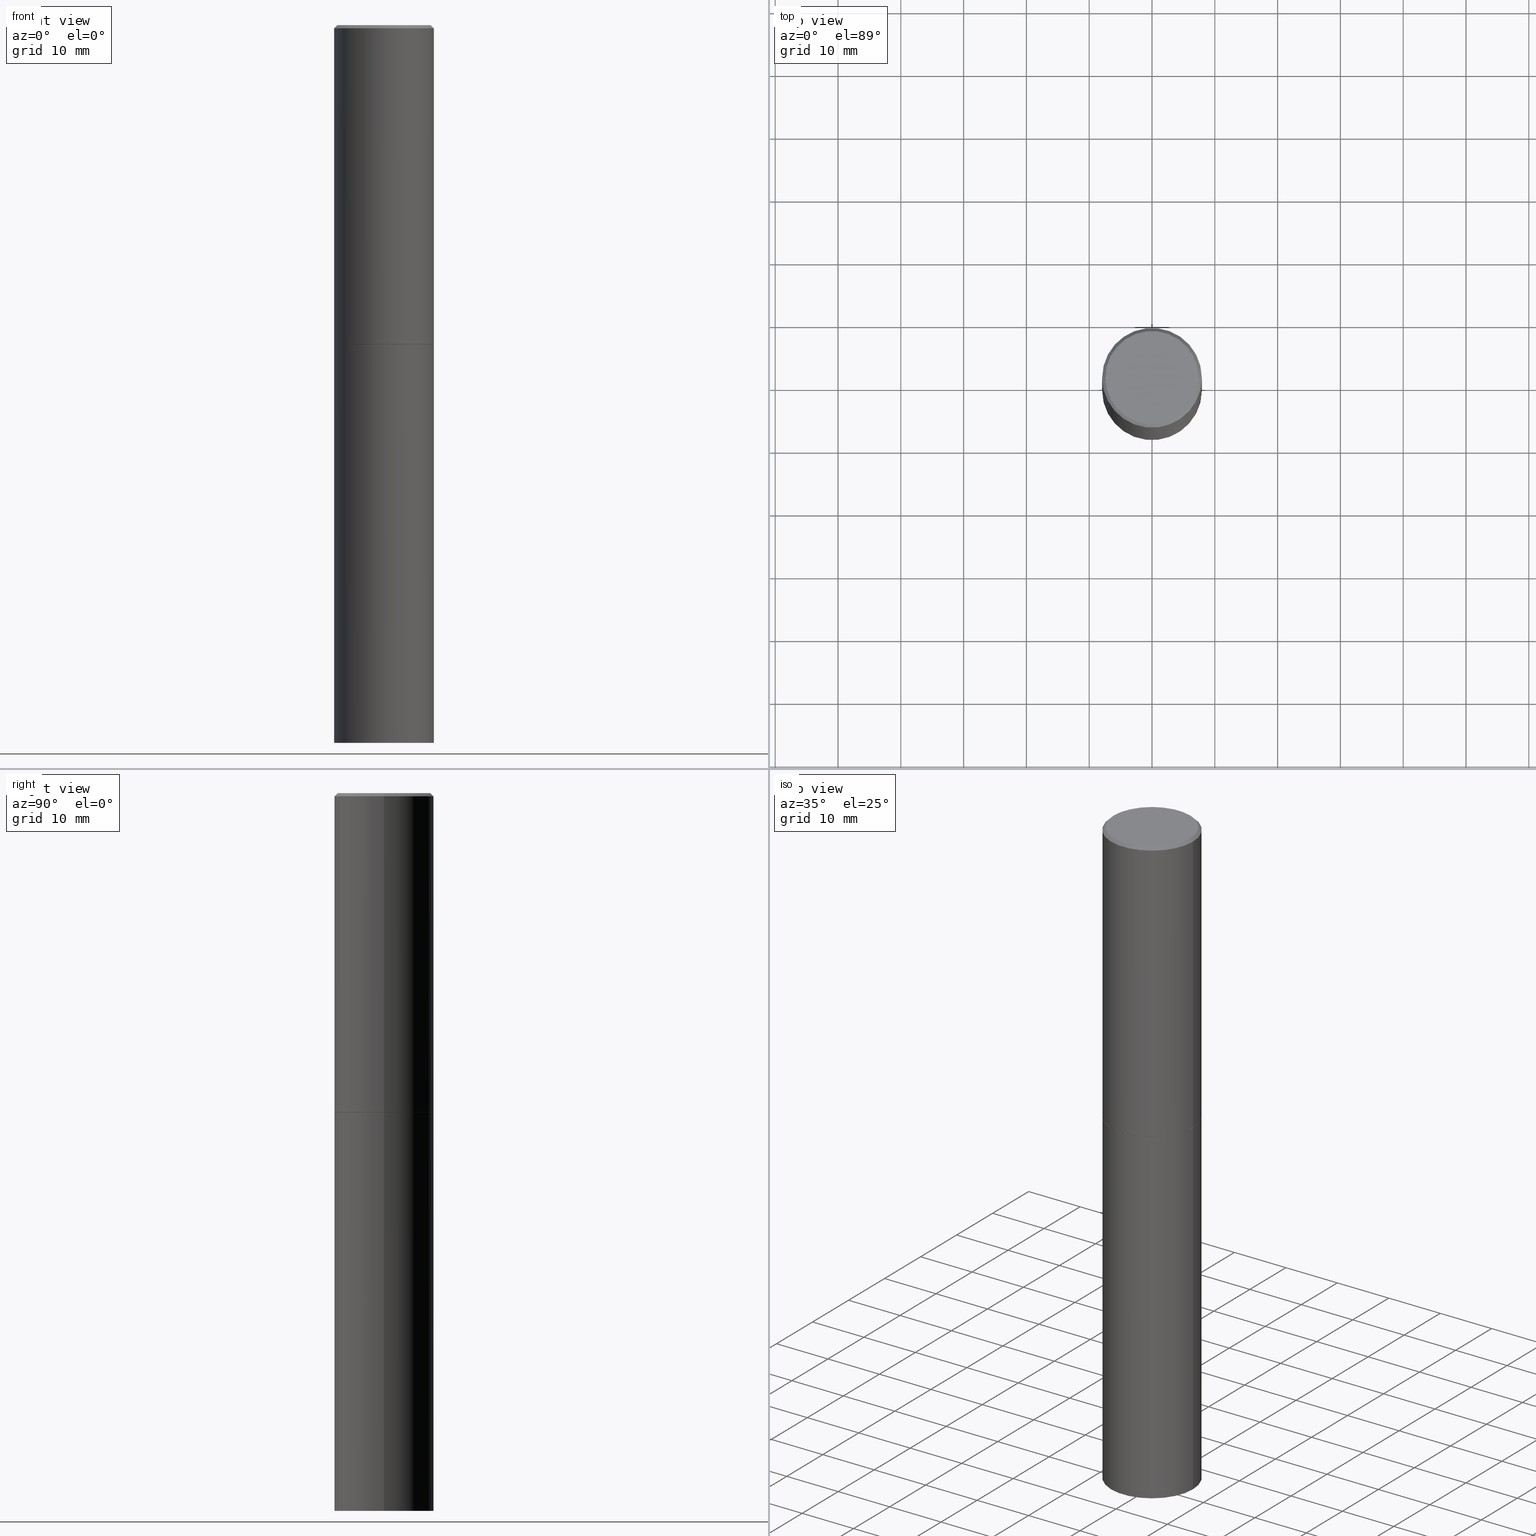
[diagram: canonical four-view strip — front | top / right | iso, engineering-drawing reading convention]
A machine part, canonical four-view strip (front | top / right | iso — engineering-drawing reading convention). The complete STEP part file that produces these views, byte-faithful:
ISO-10303-21;
HEADER;
FILE_DESCRIPTION (( 'STEP AP203' ),
    '1' );
FILE_NAME ('77401.STEP',
    '2024-05-03T15:06:01',
    ( '' ),
    ( '' ),
    'SwSTEP 2.0',
    'SolidWorks 2023',
    '' );
FILE_SCHEMA (( 'CONFIG_CONTROL_DESIGN' ));
ENDSEC;

DATA;
#1 =( NAMED_UNIT ( * ) SI_UNIT ( $, .STERADIAN. ) SOLID_ANGLE_UNIT ( ) );
#2 = AXIS2_PLACEMENT_3D ( 'NONE', #198, #112, #344 ) ;
#3 = LOCAL_TIME ( 11, 6, 1.000000000000000000, #264 ) ;
#4 = VECTOR ( 'NONE', #166, 39.37007874015748854 ) ;
#5 = ADVANCED_FACE ( 'NONE', ( #326 ), #212, .T. ) ;
#6 = LINE ( 'NONE', #38, #332 ) ;
#7 = ORIENTED_EDGE ( 'NONE', *, *, #235, .F. ) ;
#8 = CARTESIAN_POINT ( 'NONE',  ( 4.890937612370273194E-29, -6.982962677686291165E-15, -2.000000000000000000 ) ) ;
#9 = ORIENTED_EDGE ( 'NONE', *, *, #246, .T. ) ;
#10 = DIRECTION ( 'NONE',  ( 1.000000000000000000, -6.982962677686265133E-15, 0.000000000000000000 ) ) ;
#11 = AXIS2_PLACEMENT_3D ( 'NONE', #21, #211, #333 ) ;
#12 = PRODUCT_DEFINITION ( 'UNKNOWN', '', #275, #153 ) ;
#13 = DIRECTION ( 'NONE',  ( 1.000000000000000000, -6.982962677686269077E-15, 0.000000000000000000 ) ) ;
#14 = ORIENTED_EDGE ( 'NONE', *, *, #283, .F. ) ;
#15 = DIRECTION ( 'NONE',  ( -2.445468806185136597E-29, 3.491481338843145583E-15, 1.000000000000000000 ) ) ;
#16 = APPROVAL_ROLE ( '' ) ;
#17 = SECURITY_CLASSIFICATION ( '', '', #149 ) ;
#18 = COORDINATED_UNIVERSAL_TIME_OFFSET ( 5, 0, .BEHIND. ) ;
#19 = PERSON_AND_ORGANIZATION ( #106, #60 ) ;
#20 = ORIENTED_EDGE ( 'NONE', *, *, #335, .T. ) ;
#21 = CARTESIAN_POINT ( 'NONE',  ( 2.182175836777068393E-15, 0.3124999999999842903, -4.500000000000000888 ) ) ;
#22 = VERTEX_POINT ( 'NONE', #190 ) ;
#23 = APPROVAL_STATUS ( 'not_yet_approved' ) ;
#24 = EDGE_LOOP ( 'NONE', ( #9, #308, #227, #123 ) ) ;
#25 = AXIS2_PLACEMENT_3D ( 'NONE', #159, #26, #80 ) ;
#26 = DIRECTION ( 'NONE',  ( -2.445468806185136597E-29, 3.491481338843145583E-15, 1.000000000000000000 ) ) ;
#27 = ORIENTED_EDGE ( 'NONE', *, *, #295, .T. ) ;
#28 = AXIS2_PLACEMENT_3D ( 'NONE', #334, #44, #205 ) ;
#29 = DIRECTION ( 'NONE',  ( 1.000000000000000000, -6.982962677686269077E-15, 0.000000000000000000 ) ) ;
#30 = VECTOR ( 'NONE', #107, 39.37007874015748143 ) ;
#31 = DIRECTION ( 'NONE',  ( 1.000000000000000000, -6.982962677686269077E-15, 0.000000000000000000 ) ) ;
#32 = PRODUCT_RELATED_PRODUCT_CATEGORY ( 'detail', '', ( #92 ) ) ;
#33 = CARTESIAN_POINT ( 'NONE',  ( 0.3125000000000000000, -9.165138514463248723E-15, -2.000000000000000000 ) ) ;
#34 = CARTESIAN_POINT ( 'NONE',  ( 4.890937612370293302E-31, -6.982962677686318726E-17, -0.02000000000000008021 ) ) ;
#35 = ADVANCED_FACE ( 'NONE', ( #61 ), #312, .T. ) ;
#36 = EDGE_LOOP ( 'NONE', ( #14, #233, #339, #39 ) ) ;
#37 = DIRECTION ( 'NONE',  ( -2.445468806185136877E-29, 3.491481338843145188E-15, 1.000000000000000000 ) ) ;
#38 = CARTESIAN_POINT ( 'NONE',  ( -0.3114999999999999991, -4.769622055793578304E-15, -2.000000000000000000 ) ) ;
#39 = ORIENTED_EDGE ( 'NONE', *, *, #295, .F. ) ;
#40 = FACE_OUTER_BOUND ( 'NONE', #137, .T. ) ;
#41 = FACE_OUTER_BOUND ( 'NONE', #87, .T. ) ;
#42 =( GEOMETRIC_REPRESENTATION_CONTEXT ( 3 ) GLOBAL_UNCERTAINTY_ASSIGNED_CONTEXT ( ( #307 ) ) GLOBAL_UNIT_ASSIGNED_CONTEXT ( ( #182, #277, #1 ) ) REPRESENTATION_CONTEXT ( 'NONE', 'WORKASPACE' ) );
#43 = DIRECTION ( 'NONE',  ( -2.445468806185136597E-29, 3.491481338843145583E-15, 1.000000000000000000 ) ) ;
#44 = DIRECTION ( 'NONE',  ( -2.438088387897960049E-29, 3.491481338843145188E-15, 1.000000000000000000 ) ) ;
#45 = DATE_AND_TIME ( #232, #117 ) ;
#46 = FACE_OUTER_BOUND ( 'NONE', #200, .T. ) ;
#47 = PERSON_AND_ORGANIZATION ( #106, #60 ) ;
#48 = FACE_OUTER_BOUND ( 'NONE', #351, .T. ) ;
#49 = CARTESIAN_POINT ( 'NONE',  ( -0.3114999999999999991, -4.764323601445356690E-15, -2.000000000000000000 ) ) ;
#50 = DATE_AND_TIME ( #294, #328 ) ;
#51 = CC_DESIGN_PERSON_AND_ORGANIZATION_ASSIGNMENT ( #203, #132, ( #92 ) ) ;
#52 = AXIS2_PLACEMENT_3D ( 'NONE', #259, #152, #31 ) ;
#53 = APPROVAL_PERSON_ORGANIZATION ( #47, #57, #122 ) ;
#54 = ORIENTED_EDGE ( 'NONE', *, *, #158, .T. ) ;
#55 = DIRECTION ( 'NONE',  ( 1.000000000000000000, -6.982962677686269077E-15, 0.000000000000000000 ) ) ;
#56 = ORIENTED_EDGE ( 'NONE', *, *, #238, .T. ) ;
#57 = APPROVAL ( #23, 'UNSPECIFIED' ) ;
#58 = EDGE_CURVE ( 'NONE', #234, #263, #155, .T. ) ;
#59 = CYLINDRICAL_SURFACE ( 'NONE', #309, 0.3125000000000000000 ) ;
#60 = ORGANIZATION ( 'UNSPECIFIED', 'UNSPECIFIED', '' ) ;
#61 = FACE_OUTER_BOUND ( 'NONE', #143, .T. ) ;
#62 = CARTESIAN_POINT ( 'NONE',  ( 1.100460962783311469E-28, -1.571166602479415690E-14, -4.500000000000000000 ) ) ;
#63 = CIRCLE ( 'NONE', #321, 0.2924999999999997602 ) ;
#64 = CARTESIAN_POINT ( 'NONE',  ( 2.042516583223230962E-15, 0.2924999999999997602, -1.016989779121518801E-15 ) ) ;
#65 = CARTESIAN_POINT ( 'NONE',  ( -2.087702828670439639E-46, 2.980686340760894400E-32, 8.537024980200822558E-18 ) ) ;
#66 = MANIFOLD_SOLID_BREP ( 'Body-Move/Copy2[2]', #88 ) ;
#67 = ORIENTED_EDGE ( 'NONE', *, *, #94, .T. ) ;
#68 = CLOSED_SHELL ( 'NONE', ( #311, #128, #291, #229 ) ) ;
#69 = VECTOR ( 'NONE', #37, 39.37007874015748143 ) ;
#70 = DIRECTION ( 'NONE',  ( 1.000000000000000000, -6.982962677686266711E-15, 4.876067333457693400E-29 ) ) ;
#71 = DIRECTION ( 'NONE',  ( 2.438088387897960049E-29, -3.491481338843145188E-15, -1.000000000000000000 ) ) ;
#72 = ORIENTED_EDGE ( 'NONE', *, *, #99, .F. ) ;
#73 = ADVANCED_FACE ( 'NONE', ( #287 ), #199, .T. ) ;
#74 = VERTEX_POINT ( 'NONE', #221 ) ;
#75 = CALENDAR_DATE ( 2024, 3, 5 ) ;
#76 = DIRECTION ( 'NONE',  ( 1.000000000000000000, -6.982962677686269077E-15, 0.000000000000000000 ) ) ;
#77 = CC_DESIGN_APPROVAL ( #347, ( #12 ) ) ;
#78 = DIRECTION ( 'NONE',  ( -2.445468806185136597E-29, 3.491481338843145583E-15, 1.000000000000000000 ) ) ;
#79 =( LENGTH_UNIT ( ) NAMED_UNIT ( * ) SI_UNIT ( $, .METRE. ) );
#80 = DIRECTION ( 'NONE',  ( 1.000000000000000000, -6.982962677686266711E-15, 4.876176775795935232E-29 ) ) ;
#81 = CARTESIAN_POINT ( 'NONE',  ( 1.100460962783311469E-28, -1.571166602479415690E-14, -4.500000000000000000 ) ) ;
#82 = VERTEX_POINT ( 'NONE', #338 ) ;
#83 = DIMENSIONAL_EXPONENTS ( 1.000000000000000000, 0.000000000000000000, 0.000000000000000000, 0.000000000000000000, 0.000000000000000000, 0.000000000000000000, 0.000000000000000000 ) ;
#84 = AXIS2_PLACEMENT_3D ( 'NONE', #255, #71, #196 ) ;
#85 = EDGE_CURVE ( 'NONE', #22, #82, #299, .T. ) ;
#86 = APPROVAL ( #95, 'UNSPECIFIED' ) ;
#87 = EDGE_LOOP ( 'NONE', ( #7, #90, #249, #124 ) ) ;
#88 = CLOSED_SHELL ( 'NONE', ( #113, #160, #197, #73, #35, #5, #89, #176 ) ) ;
#89 = ADVANCED_FACE ( 'NONE', ( #167 ), #224, .F. ) ;
#90 = ORIENTED_EDGE ( 'NONE', *, *, #133, .T. ) ;
#91 = PLANE ( 'NONE',  #218 ) ;
#92 = PRODUCT ( '77401', '77401', '', ( #340 ) ) ;
#93 = LOCAL_TIME ( 11, 6, 1.000000000000000000, #302 ) ;
#94 = EDGE_CURVE ( 'NONE', #280, #331, #298, .T. ) ;
#95 = APPROVAL_STATUS ( 'not_yet_approved' ) ;
#96 = SHAPE_DEFINITION_REPRESENTATION ( #349, #251 ) ;
#97 = CARTESIAN_POINT ( 'NONE',  ( 4.890937612370273194E-29, -6.982962677686291165E-15, -2.000000000000000000 ) ) ;
#98 = CONICAL_SURFACE ( 'NONE', #357, 0.3114999999999999991, 0.7853981633974141952 ) ;
#99 = EDGE_CURVE ( 'NONE', #74, #346, #350, .T. ) ;
#100 = DATE_AND_TIME ( #353, #93 ) ;
#101 = DIRECTION ( 'NONE',  ( -2.445468806185136597E-29, 3.491481338843145583E-15, 1.000000000000000000 ) ) ;
#102 = PERSON_AND_ORGANIZATION ( #106, #60 ) ;
#103 = DIRECTION ( 'NONE',  ( -2.445468806185136597E-29, 3.491481338843145583E-15, 1.000000000000000000 ) ) ;
#104 = DIRECTION ( 'NONE',  ( -0.7071067811865469066, 2.468850131082251144E-15, -0.7071067811865479058 ) ) ;
#105 = CC_DESIGN_PERSON_AND_ORGANIZATION_ASSIGNMENT ( #204, #324, ( #275 ) ) ;
#106 = PERSON ( 'UNSPECIFIED', 'UNSPECIFIED', 'UNSPECIFIED', ('UNSPECIFIED'), ('UNSPECIFIED'), ('UNSPECIFIED') ) ;
#107 = DIRECTION ( 'NONE',  ( -2.445468806185136877E-29, 3.491481338843145188E-15, 1.000000000000000000 ) ) ;
#108 = DIRECTION ( 'NONE',  ( 1.000000000000000000, -6.982962677686269077E-15, 0.000000000000000000 ) ) ;
#109 = CYLINDRICAL_SURFACE ( 'NONE', #178, 0.3124999999999998890 ) ;
#110 = CARTESIAN_POINT ( 'NONE',  ( 4.890937612370273194E-29, -6.982962677686291165E-15, -2.000000000000000000 ) ) ;
#111 = CIRCLE ( 'NONE', #157, 0.3125000000000000000 ) ;
#112 = DIRECTION ( 'NONE',  ( -2.445468806185136597E-29, 3.491481338843145583E-15, 1.000000000000000000 ) ) ;
#113 = ADVANCED_FACE ( 'NONE', ( #46 ), #98, .T. ) ;
#114 = CARTESIAN_POINT ( 'NONE',  ( 0.3124999999999998890, -2.182175836776957558E-15, 1.523805242436229235E-29 ) ) ;
#115 = VECTOR ( 'NONE', #104, 39.37007874015748854 ) ;
#116 = CARTESIAN_POINT ( 'NONE',  ( 4.890937612370293302E-31, -6.982962677686318726E-17, -0.02000000000000008021 ) ) ;
#117 = LOCAL_TIME ( 11, 6, 1.000000000000000000, #239 ) ;
#118 = DIRECTION ( 'NONE',  ( 1.000000000000000000, -6.982962677686266711E-15, 4.876176775795936353E-29 ) ) ;
#119 = DIRECTION ( 'NONE',  ( -2.445468806185136877E-29, 3.491481338843145188E-15, 1.000000000000000000 ) ) ;
#120 = ORIENTED_EDGE ( 'NONE', *, *, #133, .F. ) ;
#121 = APPROVAL_ROLE ( '' ) ;
#122 = APPROVAL_ROLE ( '' ) ;
#123 = ORIENTED_EDGE ( 'NONE', *, *, #262, .F. ) ;
#124 = ORIENTED_EDGE ( 'NONE', *, *, #181, .F. ) ;
#125 = CIRCLE ( 'NONE', #271, 0.3124999999999998335 ) ;
#126 = ORIENTED_EDGE ( 'NONE', *, *, #241, .T. ) ;
#127 = PERSON_AND_ORGANIZATION ( #106, #60 ) ;
#128 = ADVANCED_FACE ( 'NONE', ( #48 ), #179, .T. ) ;
#129 = DIRECTION ( 'NONE',  ( 1.000000000000000000, -6.982962677686266711E-15, 4.876176775795936353E-29 ) ) ;
#130 = CONICAL_SURFACE ( 'NONE', #208, 0.3124999999999998335, 0.7853981633974476129 ) ;
#131 = LINE ( 'NONE', #245, #30 ) ;
#132 = PERSON_AND_ORGANIZATION_ROLE ( 'design_owner' ) ;
#133 = EDGE_CURVE ( 'NONE', #226, #354, #188, .T. ) ;
#134 = VECTOR ( 'NONE', #119, 39.37007874015748143 ) ;
#135 = CARTESIAN_POINT ( 'NONE',  ( 0.2924999999999997602, -2.110215457714318353E-15, 8.537024980215342529E-18 ) ) ;
#136 = ORIENTED_EDGE ( 'NONE', *, *, #192, .F. ) ;
#137 = EDGE_LOOP ( 'NONE', ( #290, #161 ) ) ;
#138 = PERSON_AND_ORGANIZATION ( #106, #60 ) ;
#139 = PLANE ( 'NONE',  #84 ) ;
#140 = ORIENTED_EDGE ( 'NONE', *, *, #158, .F. ) ;
#141 = CARTESIAN_POINT ( 'NONE',  ( 0.3124999999999998335, -2.213735251080465334E-15, -0.02000000000000008021 ) ) ;
#142 = CARTESIAN_POINT ( 'NONE',  ( 0.3114999999999999991, -9.158155551785564287E-15, -2.000000000000000000 ) ) ;
#143 = EDGE_LOOP ( 'NONE', ( #322, #27, #193, #237 ) ) ;
#144 = COORDINATED_UNIVERSAL_TIME_OFFSET ( 5, 0, .BEHIND. ) ;
#145 = ORIENTED_EDGE ( 'NONE', *, *, #94, .F. ) ;
#146 = LOCAL_TIME ( 11, 6, 1.000000000000000000, #18 ) ;
#147 = CARTESIAN_POINT ( 'NONE',  ( 4.890937612370273194E-29, -6.982962677686291165E-15, -2.000000000000000000 ) ) ;
#148 = DIRECTION ( 'NONE',  ( 1.000000000000000000, -6.982962677686266711E-15, 4.876176775795935232E-29 ) ) ;
#149 = SECURITY_CLASSIFICATION_LEVEL ( 'unclassified' ) ;
#150 = CC_DESIGN_DATE_AND_TIME_ASSIGNMENT ( #50, #360, ( #17 ) ) ;
#151 = CARTESIAN_POINT ( 'NONE',  ( -0.3124999999999998335, 2.112346210000093866E-15, -0.02000000000000008021 ) ) ;
#152 = DIRECTION ( 'NONE',  ( -2.445468806185136597E-29, 3.491481338843145583E-15, 1.000000000000000000 ) ) ;
#153 = DESIGN_CONTEXT ( 'detailed design', #258, 'design' ) ;
#154 = CARTESIAN_POINT ( 'NONE',  ( 0.3124999999999998335, -2.213735251080465334E-15, -0.02000000000000008021 ) ) ;
#155 = CIRCLE ( 'NONE', #2, 0.3125000000000000000 ) ;
#156 = APPROVAL_PERSON_ORGANIZATION ( #138, #347, #16 ) ;
#157 = AXIS2_PLACEMENT_3D ( 'NONE', #62, #173, #13 ) ;
#158 = EDGE_CURVE ( 'NONE', #223, #317, #366, .T. ) ;
#159 = CARTESIAN_POINT ( 'NONE',  ( 0.000000000000000000, 0.000000000000000000, 0.000000000000000000 ) ) ;
#160 = ADVANCED_FACE ( 'NONE', ( #164 ), #109, .T. ) ;
#161 = ORIENTED_EDGE ( 'NONE', *, *, #181, .T. ) ;
#162 = FACE_OUTER_BOUND ( 'NONE', #356, .T. ) ;
#163 = CC_DESIGN_APPROVAL ( #86, ( #17 ) ) ;
#164 = FACE_OUTER_BOUND ( 'NONE', #297, .T. ) ;
#165 = CC_DESIGN_DATE_AND_TIME_ASSIGNMENT ( #206, #230, ( #12 ) ) ;
#166 = DIRECTION ( 'NONE',  ( 0.7071067811865232589, -2.468850131082003836E-15, 0.7071067811865715536 ) ) ;
#167 = FACE_OUTER_BOUND ( 'NONE', #216, .T. ) ;
#168 = DIRECTION ( 'NONE',  ( -2.445468806185136877E-29, 3.491481338843145188E-15, 1.000000000000000000 ) ) ;
#169 = DIRECTION ( 'NONE',  ( -2.445468806185136597E-29, 3.491481338843145583E-15, 1.000000000000000000 ) ) ;
#170 = ORIENTED_EDGE ( 'NONE', *, *, #210, .T. ) ;
#171 = CIRCLE ( 'NONE', #289, 0.2924999999999997602 ) ;
#172 = EDGE_CURVE ( 'NONE', #331, #346, #256, .T. ) ;
#173 = DIRECTION ( 'NONE',  ( -2.445468806185136597E-29, 3.491481338843145583E-15, 1.000000000000000000 ) ) ;
#174 = ORIENTED_EDGE ( 'NONE', *, *, #272, .F. ) ;
#175 = PERSON_AND_ORGANIZATION_ROLE ( 'classification_officer' ) ;
#176 = ADVANCED_FACE ( 'NONE', ( #348 ), #91, .F. ) ;
#177 = AXIS2_PLACEMENT_3D ( 'NONE', #278, #248, #219 ) ;
#178 = AXIS2_PLACEMENT_3D ( 'NONE', #217, #15, #148 ) ;
#179 = PLANE ( 'NONE',  #11 ) ;
#180 = PERSON_AND_ORGANIZATION_ROLE ( 'design_supplier' ) ;
#181 = EDGE_CURVE ( 'NONE', #263, #234, #304, .T. ) ;
#182 =( CONVERSION_BASED_UNIT ( 'INCH', #240 ) LENGTH_UNIT ( ) NAMED_UNIT ( #83 ) );
#183 = CIRCLE ( 'NONE', #265, 0.3114999999999999991 ) ;
#184 = DIRECTION ( 'NONE',  ( 1.000000000000000000, -6.982962677686266711E-15, 4.876067333457693400E-29 ) ) ;
#185 = DIRECTION ( 'NONE',  ( -2.445468806185136597E-29, 3.491481338843145583E-15, 1.000000000000000000 ) ) ;
#186 = DIRECTION ( 'NONE',  ( 1.000000000000000000, -6.982962677686269077E-15, 0.000000000000000000 ) ) ;
#187 = LINE ( 'NONE', #114, #69 ) ;
#188 = CIRCLE ( 'NONE', #189, 0.3125000000000000000 ) ;
#189 = AXIS2_PLACEMENT_3D ( 'NONE', #81, #185, #306 ) ;
#190 = CARTESIAN_POINT ( 'NONE',  ( 0.3125000000000000000, -9.161647033124407294E-15, -1.998999999999999888 ) ) ;
#191 = AXIS2_PLACEMENT_3D ( 'NONE', #301, #266, #250 ) ;
#192 = EDGE_CURVE ( 'NONE', #22, #331, #187, .T. ) ;
#193 = ORIENTED_EDGE ( 'NONE', *, *, #192, .T. ) ;
#194 = LINE ( 'NONE', #318, #236 ) ;
#195 = APPLICATION_PROTOCOL_DEFINITION ( 'international standard', 'config_control_design', 1994, #244 ) ;
#196 = DIRECTION ( 'NONE',  ( -1.000000000000000000, 6.982962677686265922E-15, -4.876176775795935793E-29 ) ) ;
#197 = ADVANCED_FACE ( 'NONE', ( #162 ), #130, .T. ) ;
#198 = CARTESIAN_POINT ( 'NONE',  ( 4.890937612370273194E-29, -6.982962677686291165E-15, -2.000000000000000000 ) ) ;
#199 = CONICAL_SURFACE ( 'NONE', #177, 0.3124999999999998335, 0.7853981633974476129 ) ;
#200 = EDGE_LOOP ( 'NONE', ( #54, #345, #274, #174 ) ) ;
#201 = AXIS2_PLACEMENT_3D ( 'NONE', #253, #285, #323 ) ;
#202 = CARTESIAN_POINT ( 'NONE',  ( 0.3114999999999999991, -9.158155551785564287E-15, -2.000000000000000000 ) ) ;
#203 = PERSON_AND_ORGANIZATION ( #106, #60 ) ;
#204 = PERSON_AND_ORGANIZATION ( #106, #60 ) ;
#205 = DIRECTION ( 'NONE',  ( 1.000000000000000000, -6.982962677686265922E-15, 4.876176775795935793E-29 ) ) ;
#206 = DATE_AND_TIME ( #300, #146 ) ;
#207 = ORIENTED_EDGE ( 'NONE', *, *, #172, .F. ) ;
#208 = AXIS2_PLACEMENT_3D ( 'NONE', #116, #225, #343 ) ;
#209 = CARTESIAN_POINT ( 'NONE',  ( 0.000000000000000000, 0.000000000000000000, 0.000000000000000000 ) ) ;
#210 = EDGE_CURVE ( 'NONE', #82, #346, #194, .T. ) ;
#211 = DIRECTION ( 'NONE',  ( 2.438088387897960049E-29, -3.491481338843145188E-15, -1.000000000000000000 ) ) ;
#212 = CONICAL_SURFACE ( 'NONE', #320, 0.3114999999999999991, 0.7853981633974141952 ) ;
#213 = CC_DESIGN_SECURITY_CLASSIFICATION ( #17, ( #275 ) ) ;
#214 = CC_DESIGN_PERSON_AND_ORGANIZATION_ASSIGNMENT ( #352, #175, ( #17 ) ) ;
#215 = DIRECTION ( 'NONE',  ( -1.000000000000000000, 6.982962677686265922E-15, -4.876176775795935793E-29 ) ) ;
#216 = EDGE_LOOP ( 'NONE', ( #140, #260 ) ) ;
#217 = CARTESIAN_POINT ( 'NONE',  ( 0.000000000000000000, 0.000000000000000000, 0.000000000000000000 ) ) ;
#218 = AXIS2_PLACEMENT_3D ( 'NONE', #64, #254, #215 ) ;
#219 = DIRECTION ( 'NONE',  ( -1.000000000000000000, 6.982962677686265133E-15, 0.000000000000000000 ) ) ;
#220 = VECTOR ( 'NONE', #273, 39.37007874015748854 ) ;
#221 = CARTESIAN_POINT ( 'NONE',  ( -0.2924999999999997602, 2.077431396611662611E-15, 8.537024980186416602E-18 ) ) ;
#222 = DIRECTION ( 'NONE',  ( -2.445468806185136597E-29, 3.491481338843145583E-15, 1.000000000000000000 ) ) ;
#223 = VERTEX_POINT ( 'NONE', #202 ) ;
#224 = PLANE ( 'NONE',  #28 ) ;
#225 = DIRECTION ( 'NONE',  ( 2.445468806185136597E-29, -3.491481338843145583E-15, -1.000000000000000000 ) ) ;
#226 = VERTEX_POINT ( 'NONE', #286 ) ;
#227 = ORIENTED_EDGE ( 'NONE', *, *, #58, .F. ) ;
#228 = CC_DESIGN_APPROVAL ( #57, ( #275 ) ) ;
#229 = ADVANCED_FACE ( 'NONE', ( #41 ), #59, .T. ) ;
#230 = DATE_TIME_ROLE ( 'creation_date' ) ;
#231 = DIRECTION ( 'NONE',  ( -2.445468806185136597E-29, 3.491481338843145583E-15, 1.000000000000000000 ) ) ;
#232 = CALENDAR_DATE ( 2024, 3, 5 ) ;
#233 = ORIENTED_EDGE ( 'NONE', *, *, #364, .T. ) ;
#234 = VERTEX_POINT ( 'NONE', #33 ) ;
#235 = EDGE_CURVE ( 'NONE', #226, #263, #131, .T. ) ;
#236 = VECTOR ( 'NONE', #168, 39.37007874015748143 ) ;
#237 = ORIENTED_EDGE ( 'NONE', *, *, #241, .F. ) ;
#238 = EDGE_CURVE ( 'NONE', #74, #280, #63, .T. ) ;
#239 = COORDINATED_UNIVERSAL_TIME_OFFSET ( 5, 0, .BEHIND. ) ;
#240 = LENGTH_MEASURE_WITH_UNIT ( LENGTH_MEASURE( 0.02539999999999999897 ), #79 );
#241 = EDGE_CURVE ( 'NONE', #346, #331, #125, .T. ) ;
#242 = CIRCLE ( 'NONE', #313, 0.3125000000000000000 ) ;
#243 = EDGE_LOOP ( 'NONE', ( #145, #362, #252, #126 ) ) ;
#244 = APPLICATION_CONTEXT ( 'configuration controlled 3d designs of mechanical parts and assemblies' ) ;
#245 = CARTESIAN_POINT ( 'NONE',  ( -0.3125000000000000000, 2.220446049250313081E-15, -1.537167215704658232E-29 ) ) ;
#246 = EDGE_CURVE ( 'NONE', #354, #226, #111, .T. ) ;
#247 = APPROVAL_PERSON_ORGANIZATION ( #19, #86, #121 ) ;
#248 = DIRECTION ( 'NONE',  ( 2.445468806185136597E-29, -3.491481338843145583E-15, -1.000000000000000000 ) ) ;
#249 = ORIENTED_EDGE ( 'NONE', *, *, #262, .T. ) ;
#250 = DIRECTION ( 'NONE',  ( 1.000000000000000000, -6.982962677686265133E-15, 0.000000000000000000 ) ) ;
#251 = ADVANCED_BREP_SHAPE_REPRESENTATION ( '77401', ( #310, #66, #201 ), #42 ) ;
#252 = ORIENTED_EDGE ( 'NONE', *, *, #99, .T. ) ;
#253 = CARTESIAN_POINT ( 'NONE',  ( 0.000000000000000000, 0.000000000000000000, 0.000000000000000000 ) ) ;
#254 = DIRECTION ( 'NONE',  ( 2.438088387897960049E-29, -3.491481338843145188E-15, -1.000000000000000000 ) ) ;
#255 = CARTESIAN_POINT ( 'NONE',  ( 2.182175836777007256E-15, 0.3124999999999930611, -2.000000000000000888 ) ) ;
#256 = CIRCLE ( 'NONE', #191, 0.3124999999999998335 ) ;
#257 = DIRECTION ( 'NONE',  ( -2.445468806185136597E-29, 3.491481338843145583E-15, 1.000000000000000000 ) ) ;
#258 = APPLICATION_CONTEXT ( 'configuration controlled 3d designs of mechanical parts and assemblies' ) ;
#259 = CARTESIAN_POINT ( 'NONE',  ( 4.888492143564087591E-29, -6.979471196347447369E-15, -1.998999999999999888 ) ) ;
#260 = ORIENTED_EDGE ( 'NONE', *, *, #364, .F. ) ;
#261 = CARTESIAN_POINT ( 'NONE',  ( -0.3124999999999998335, 2.112346210000093866E-15, -0.02000000000000008021 ) ) ;
#262 = EDGE_CURVE ( 'NONE', #354, #234, #316, .T. ) ;
#263 = VERTEX_POINT ( 'NONE', #292 ) ;
#264 = COORDINATED_UNIVERSAL_TIME_OFFSET ( 5, 0, .BEHIND. ) ;
#265 = AXIS2_PLACEMENT_3D ( 'NONE', #361, #103, #55 ) ;
#266 = DIRECTION ( 'NONE',  ( -2.445468806185136597E-29, 3.491481338843145583E-15, 1.000000000000000000 ) ) ;
#267 = APPROVAL_DATE_TIME ( #327, #347 ) ;
#268 = ORIENTED_EDGE ( 'NONE', *, *, #246, .F. ) ;
#269 = APPROVAL_DATE_TIME ( #45, #57 ) ;
#270 = CARTESIAN_POINT ( 'NONE',  ( -2.087702828670439639E-46, 2.980686340760894400E-32, 8.537024980200822558E-18 ) ) ;
#271 = AXIS2_PLACEMENT_3D ( 'NONE', #34, #169, #342 ) ;
#272 = EDGE_CURVE ( 'NONE', #223, #22, #282, .T. ) ;
#273 = DIRECTION ( 'NONE',  ( 0.7071067811865469066, -7.319954787623252890E-15, -0.7071067811865479058 ) ) ;
#274 = ORIENTED_EDGE ( 'NONE', *, *, #85, .F. ) ;
#275 = PRODUCT_DEFINITION_FORMATION_WITH_SPECIFIED_SOURCE ( 'ANY', '', #92, .NOT_KNOWN. ) ;
#276 = CARTESIAN_POINT ( 'NONE',  ( 0.000000000000000000, 0.000000000000000000, 0.000000000000000000 ) ) ;
#277 =( NAMED_UNIT ( * ) PLANE_ANGLE_UNIT ( ) SI_UNIT ( $, .RADIAN. ) );
#278 = CARTESIAN_POINT ( 'NONE',  ( 4.890937612370293302E-31, -6.982962677686318726E-17, -0.02000000000000008021 ) ) ;
#279 = DIRECTION ( 'NONE',  ( -2.445468806185136597E-29, 3.491481338843145583E-15, 1.000000000000000000 ) ) ;
#280 = VERTEX_POINT ( 'NONE', #135 ) ;
#281 = APPROVAL_STATUS ( 'not_yet_approved' ) ;
#282 = LINE ( 'NONE', #142, #4 ) ;
#283 = EDGE_CURVE ( 'NONE', #317, #82, #6, .T. ) ;
#284 = DIRECTION ( 'NONE',  ( -0.7071067811865232589, 7.493145998870265808E-15, 0.7071067811865715536 ) ) ;
#285 = DIRECTION ( 'NONE',  ( 0.000000000000000000, 0.000000000000000000, 1.000000000000000000 ) ) ;
#286 = CARTESIAN_POINT ( 'NONE',  ( -0.3125000000000000000, -9.126868301989911345E-15, -4.500000000000000000 ) ) ;
#287 = FACE_OUTER_BOUND ( 'NONE', #243, .T. ) ;
#288 = CARTESIAN_POINT ( 'NONE',  ( 0.3125000000000000000, -2.182175836776958347E-15, 1.523805242436230075E-29 ) ) ;
#289 = AXIS2_PLACEMENT_3D ( 'NONE', #270, #363, #184 ) ;
#290 = ORIENTED_EDGE ( 'NONE', *, *, #58, .T. ) ;
#291 = ADVANCED_FACE ( 'NONE', ( #40 ), #139, .F. ) ;
#292 = CARTESIAN_POINT ( 'NONE',  ( -0.3125000000000000000, -9.126868301989911345E-15, -2.000000000000000000 ) ) ;
#293 = ORIENTED_EDGE ( 'NONE', *, *, #335, .F. ) ;
#294 = CALENDAR_DATE ( 2024, 3, 5 ) ;
#295 = EDGE_CURVE ( 'NONE', #82, #22, #242, .T. ) ;
#296 = PERSON_AND_ORGANIZATION_ROLE ( 'creator' ) ;
#297 = EDGE_LOOP ( 'NONE', ( #358, #170, #207, #136 ) ) ;
#298 = LINE ( 'NONE', #141, #220 ) ;
#299 = CIRCLE ( 'NONE', #52, 0.3125000000000000000 ) ;
#300 = CALENDAR_DATE ( 2024, 3, 5 ) ;
#301 = CARTESIAN_POINT ( 'NONE',  ( 4.890937612370293302E-31, -6.982962677686318726E-17, -0.02000000000000008021 ) ) ;
#302 = COORDINATED_UNIVERSAL_TIME_OFFSET ( 5, 0, .BEHIND. ) ;
#303 = CARTESIAN_POINT ( 'NONE',  ( 0.3125000000000000000, -1.789384186157111367E-14, -4.500000000000000000 ) ) ;
#304 = CIRCLE ( 'NONE', #359, 0.3125000000000000000 ) ;
#305 = CC_DESIGN_PERSON_AND_ORGANIZATION_ASSIGNMENT ( #102, #296, ( #12 ) ) ;
#306 = DIRECTION ( 'NONE',  ( 1.000000000000000000, -6.982962677686269077E-15, 0.000000000000000000 ) ) ;
#307 = UNCERTAINTY_MEASURE_WITH_UNIT (LENGTH_MEASURE( 1.000000000000000082E-05 ), #182, 'distance_accuracy_value', 'NONE');
#308 = ORIENTED_EDGE ( 'NONE', *, *, #235, .T. ) ;
#309 = AXIS2_PLACEMENT_3D ( 'NONE', #276, #257, #118 ) ;
#310 = MANIFOLD_SOLID_BREP ( 'Body-Move/Copy2[1]', #68 ) ;
#311 = ADVANCED_FACE ( 'NONE', ( #365 ), #329, .T. ) ;
#312 = CYLINDRICAL_SURFACE ( 'NONE', #25, 0.3124999999999998890 ) ;
#313 = AXIS2_PLACEMENT_3D ( 'NONE', #355, #43, #29 ) ;
#314 = CC_DESIGN_PERSON_AND_ORGANIZATION_ASSIGNMENT ( #127, #180, ( #275 ) ) ;
#315 = DIRECTION ( 'NONE',  ( -2.445468806185136597E-29, 3.491481338843145583E-15, 1.000000000000000000 ) ) ;
#316 = LINE ( 'NONE', #288, #134 ) ;
#317 = VERTEX_POINT ( 'NONE', #49 ) ;
#318 = CARTESIAN_POINT ( 'NONE',  ( -0.3124999999999998890, 2.220446049250312292E-15, -1.537167215704657391E-29 ) ) ;
#319 = EDGE_LOOP ( 'NONE', ( #56, #20 ) ) ;
#320 = AXIS2_PLACEMENT_3D ( 'NONE', #97, #101, #108 ) ;
#321 = AXIS2_PLACEMENT_3D ( 'NONE', #65, #222, #70 ) ;
#322 = ORIENTED_EDGE ( 'NONE', *, *, #210, .F. ) ;
#323 = DIRECTION ( 'NONE',  ( 1.000000000000000000, 0.000000000000000000, 0.000000000000000000 ) ) ;
#324 = PERSON_AND_ORGANIZATION_ROLE ( 'creator' ) ;
#325 = APPROVAL_DATE_TIME ( #100, #86 ) ;
#326 = FACE_OUTER_BOUND ( 'NONE', #36, .T. ) ;
#327 = DATE_AND_TIME ( #75, #3 ) ;
#328 = LOCAL_TIME ( 11, 6, 1.000000000000000000, #144 ) ;
#329 = CYLINDRICAL_SURFACE ( 'NONE', #336, 0.3125000000000000000 ) ;
#330 = ORIENTED_EDGE ( 'NONE', *, *, #172, .T. ) ;
#331 = VERTEX_POINT ( 'NONE', #154 ) ;
#332 = VECTOR ( 'NONE', #284, 39.37007874015748854 ) ;
#333 = DIRECTION ( 'NONE',  ( -1.000000000000000000, 6.982962677686265922E-15, -4.876176775795935793E-29 ) ) ;
#334 = CARTESIAN_POINT ( 'NONE',  ( 4.890937612370273194E-29, -6.982962677686291165E-15, -2.000000000000000000 ) ) ;
#335 = EDGE_CURVE ( 'NONE', #280, #74, #171, .T. ) ;
#336 = AXIS2_PLACEMENT_3D ( 'NONE', #209, #78, #129 ) ;
#337 = APPLICATION_PROTOCOL_DEFINITION ( 'international standard', 'config_control_design', 1994, #258 ) ;
#338 = CARTESIAN_POINT ( 'NONE',  ( -0.3125000000000000000, -1.304204362311840281E-15, -1.998999999999999888 ) ) ;
#339 = ORIENTED_EDGE ( 'NONE', *, *, #272, .T. ) ;
#340 = MECHANICAL_CONTEXT ( 'NONE', #244, 'mechanical' ) ;
#341 = AXIS2_PLACEMENT_3D ( 'NONE', #110, #279, #186 ) ;
#342 = DIRECTION ( 'NONE',  ( 1.000000000000000000, -6.982962677686265133E-15, 0.000000000000000000 ) ) ;
#343 = DIRECTION ( 'NONE',  ( -1.000000000000000000, 6.982962677686265133E-15, 0.000000000000000000 ) ) ;
#344 = DIRECTION ( 'NONE',  ( 1.000000000000000000, -6.982962677686265133E-15, 0.000000000000000000 ) ) ;
#345 = ORIENTED_EDGE ( 'NONE', *, *, #283, .T. ) ;
#346 = VERTEX_POINT ( 'NONE', #151 ) ;
#347 = APPROVAL ( #281, 'UNSPECIFIED' ) ;
#348 = FACE_OUTER_BOUND ( 'NONE', #319, .T. ) ;
#349 = PRODUCT_DEFINITION_SHAPE ( 'NONE', 'NONE',  #12 ) ;
#350 = LINE ( 'NONE', #261, #115 ) ;
#351 = EDGE_LOOP ( 'NONE', ( #268, #120 ) ) ;
#352 = PERSON_AND_ORGANIZATION ( #106, #60 ) ;
#353 = CALENDAR_DATE ( 2024, 3, 5 ) ;
#354 = VERTEX_POINT ( 'NONE', #303 ) ;
#355 = CARTESIAN_POINT ( 'NONE',  ( 4.888492143564087591E-29, -6.979471196347447369E-15, -1.998999999999999888 ) ) ;
#356 = EDGE_LOOP ( 'NONE', ( #293, #67, #330, #72 ) ) ;
#357 = AXIS2_PLACEMENT_3D ( 'NONE', #147, #231, #76 ) ;
#358 = ORIENTED_EDGE ( 'NONE', *, *, #85, .T. ) ;
#359 = AXIS2_PLACEMENT_3D ( 'NONE', #8, #315, #10 ) ;
#360 = DATE_TIME_ROLE ( 'classification_date' ) ;
#361 = CARTESIAN_POINT ( 'NONE',  ( 4.890937612370273194E-29, -6.982962677686291165E-15, -2.000000000000000000 ) ) ;
#362 = ORIENTED_EDGE ( 'NONE', *, *, #238, .F. ) ;
#363 = DIRECTION ( 'NONE',  ( -2.445468806185136597E-29, 3.491481338843145583E-15, 1.000000000000000000 ) ) ;
#364 = EDGE_CURVE ( 'NONE', #317, #223, #183, .T. ) ;
#365 = FACE_OUTER_BOUND ( 'NONE', #24, .T. ) ;
#366 = CIRCLE ( 'NONE', #341, 0.3114999999999999991 ) ;
ENDSEC;
END-ISO-10303-21;
